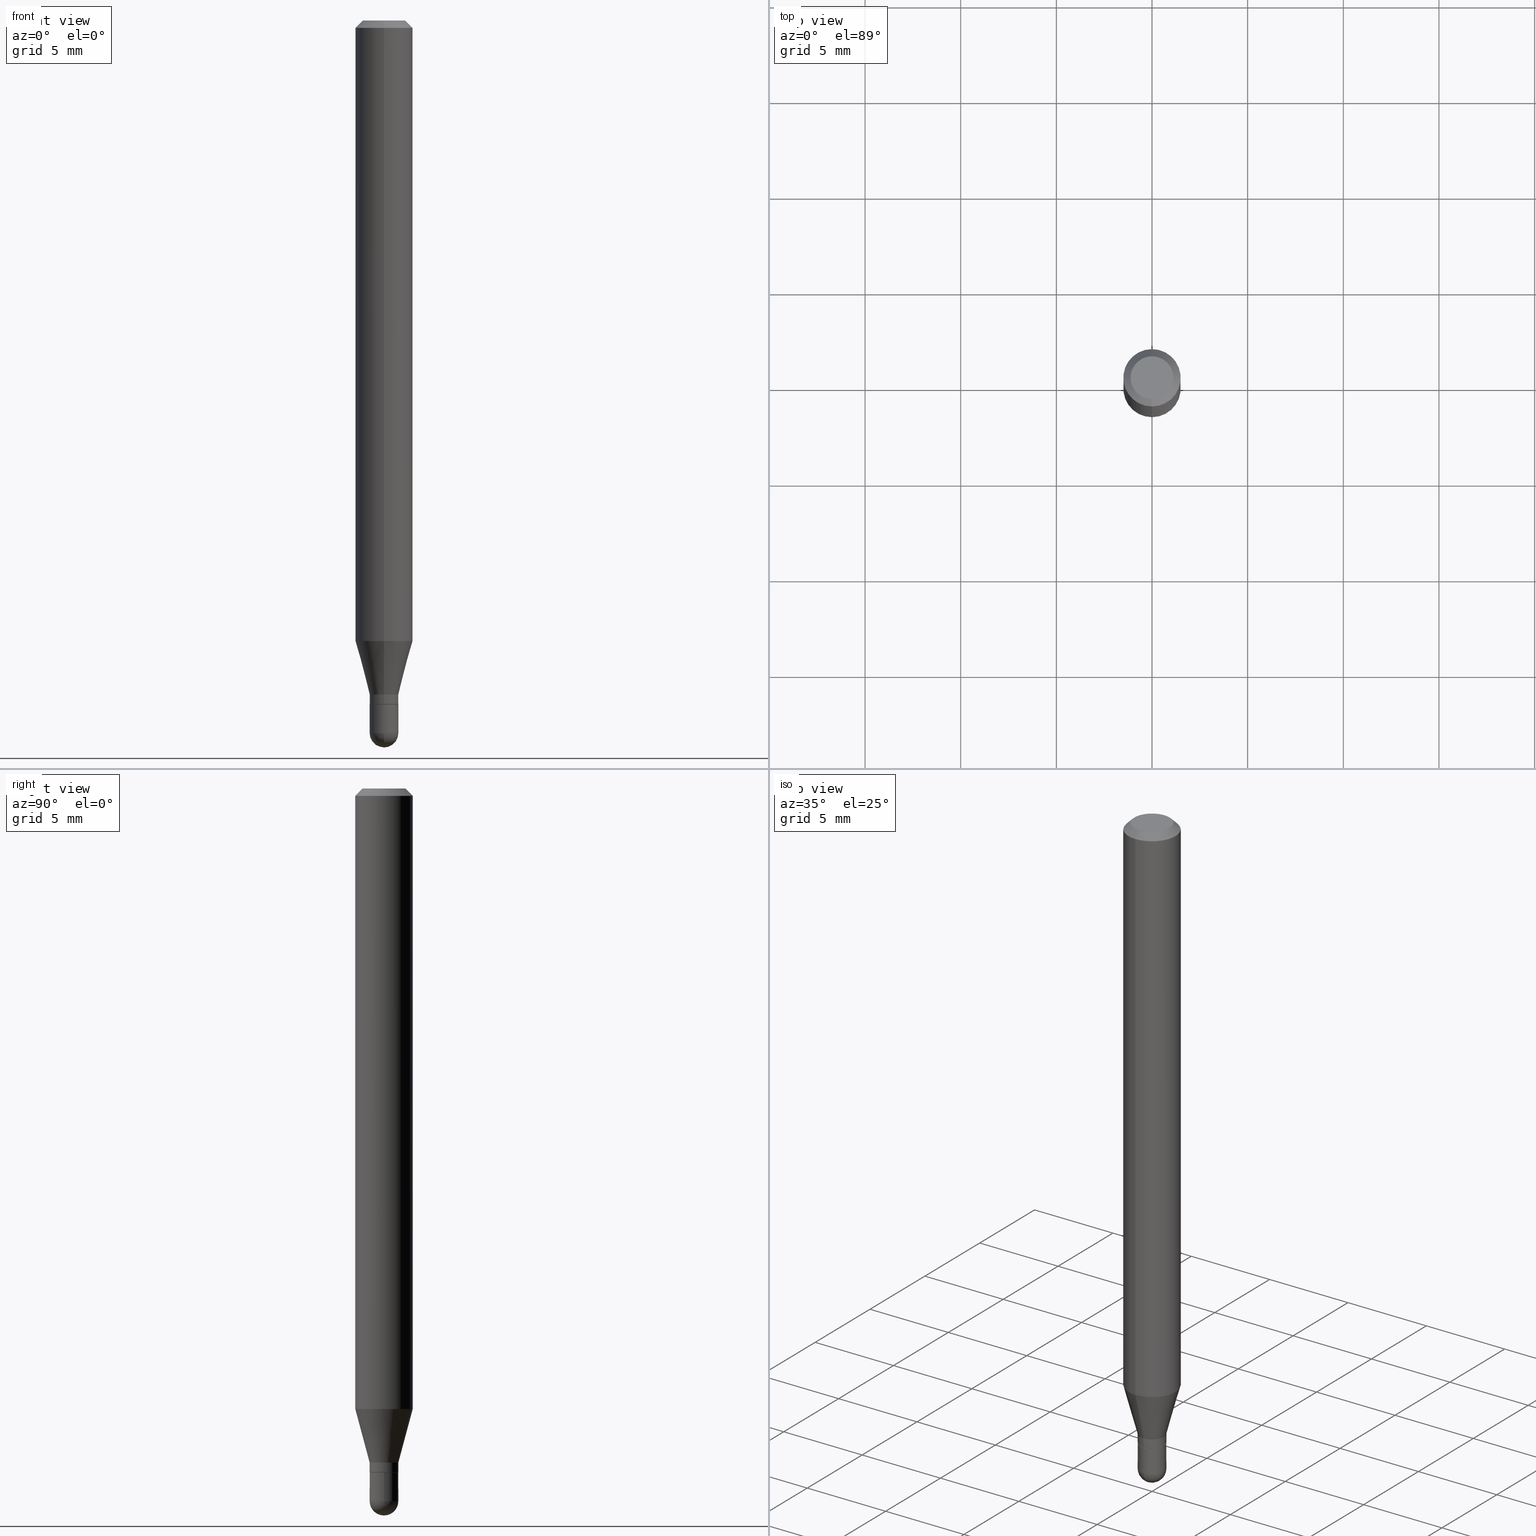
[diagram: canonical four-view strip — front | top / right | iso, engineering-drawing reading convention]
A machine part, canonical four-view strip (front | top / right | iso — engineering-drawing reading convention). The complete STEP part file that produces these views, byte-faithful:
ISO-10303-21;
HEADER;
FILE_DESCRIPTION (( 'STEP AP203' ),
    '1' );
FILE_NAME ('02932.STEP',
    '2024-03-07T21:49:51',
    ( '' ),
    ( '' ),
    'SwSTEP 2.0',
    'SolidWorks 2023',
    '' );
FILE_SCHEMA (( 'CONFIG_CONTROL_DESIGN' ));
ENDSEC;

DATA;
#1 = CARTESIAN_POINT ( 'NONE',  ( 3.586402277710811162E-29, -5.120431957480414460E-15, -1.466549999999999576 ) ) ;
#2 = DIRECTION ( 'NONE',  ( -2.445527102149587346E-29, 3.491397855704051540E-15, 1.000000000000000000 ) ) ;
#3 = ORIENTED_EDGE ( 'NONE', *, *, #85, .T. ) ;
#4 = LOCAL_TIME ( 16, 49, 51.00000000000000000, #219 ) ;
#5 = AXIS2_PLACEMENT_3D ( 'NONE', #164, #23, #247 ) ;
#6 = FACE_OUTER_BOUND ( 'NONE', #335, .T. ) ;
#7 = ADVANCED_FACE ( 'NONE', ( #507 ), #28, .T. ) ;
#8 = CARTESIAN_POINT ( 'NONE',  ( 3.440856632724470127E-29, -4.912396782975600392E-15, -1.407000000000000028 ) ) ;
#9 = DIRECTION ( 'NONE',  ( -6.982962677686265922E-15, -1.000000000000000000, 0.000000000000000000 ) ) ;
#10 = PERSON ( 'UNSPECIFIED', 'UNSPECIFIED', 'UNSPECIFIED', ('UNSPECIFIED'), ('UNSPECIFIED'), ('UNSPECIFIED') ) ;
#11 = DIRECTION ( 'NONE',  ( -4.937700262164674260E-15, -0.7071067811865632269, 0.7071067811865319186 ) ) ;
#12 = APPLICATION_PROTOCOL_DEFINITION ( 'international standard', 'config_control_design', 1994, #178 ) ;
#13 = LINE ( 'NONE', #443, #375 ) ;
#14 = EDGE_LOOP ( 'NONE', ( #249, #3 ) ) ;
#15 = DIRECTION ( 'NONE',  ( 1.000000000000000000, -7.105427357601001070E-15, 4.926315508542082329E-29 ) ) ;
#16 = PERSON_AND_ORGANIZATION ( #10, #149 ) ;
#17 = ORIENTED_EDGE ( 'NONE', *, *, #62, .T. ) ;
#18 = EDGE_CURVE ( 'NONE', #179, #304, #218, .T. ) ;
#19 = FACE_OUTER_BOUND ( 'NONE', #363, .T. ) ;
#20 = APPROVAL_PERSON_ORGANIZATION ( #168, #390, #480 ) ;
#21 = CARTESIAN_POINT ( 'NONE',  ( 3.668290653224403387E-31, -5.237096783556109678E-17, -0.01500000000000009139 ) ) ;
#22 = VERTEX_POINT ( 'NONE', #461 ) ;
#23 = DIRECTION ( 'NONE',  ( -2.445527102149587346E-29, 3.491397855704051540E-15, 1.000000000000000000 ) ) ;
#24 = ORIENTED_EDGE ( 'NONE', *, *, #436, .F. ) ;
#25 = APPLICATION_CONTEXT ( 'configuration controlled 3d designs of mechanical parts and assemblies' ) ;
#26 = ORIENTED_EDGE ( 'NONE', *, *, #85, .F. ) ;
#27 = APPROVAL ( #30, 'UNSPECIFIED' ) ;
#28 = SPHERICAL_SURFACE ( 'NONE', #216, 0.02954999999999998253 ) ;
#29 = AXIS2_PLACEMENT_3D ( 'NONE', #404, #15, #180 ) ;
#30 = APPROVAL_STATUS ( 'not_yet_approved' ) ;
#31 = EDGE_LOOP ( 'NONE', ( #157, #188, #455, #152 ) ) ;
#32 = CARTESIAN_POINT ( 'NONE',  ( 0.02954999999999999988, -5.120606531547356216E-15, -1.407499999999999973 ) ) ;
#33 = FACE_OUTER_BOUND ( 'NONE', #367, .T. ) ;
#34 = CLOSED_SHELL ( 'NONE', ( #109, #7, #416, #215, #303 ) ) ;
#35 = AXIS2_PLACEMENT_3D ( 'NONE', #8, #226, #271 ) ;
#36 = CARTESIAN_POINT ( 'NONE',  ( 2.064126647383434894E-16, 0.02904999999999508670, -1.407499999999999973 ) ) ;
#37 = CC_DESIGN_PERSON_AND_ORGANIZATION_ASSIGNMENT ( #16, #285, ( #72 ) ) ;
#38 = CARTESIAN_POINT ( 'NONE',  ( 3.392190643391691746E-29, -4.842917965647089767E-15, -1.387099999999999778 ) ) ;
#39 = ORIENTED_EDGE ( 'NONE', *, *, #427, .T. ) ;
#40 = APPROVAL_PERSON_ORGANIZATION ( #113, #27, #108 ) ;
#41 = CIRCLE ( 'NONE', #329, 0.02954999999999999988 ) ;
#42 = ORIENTED_EDGE ( 'NONE', *, *, #384, .F. ) ;
#43 = CC_DESIGN_PERSON_AND_ORGANIZATION_ASSIGNMENT ( #460, #297, ( #283 ) ) ;
#44 = CARTESIAN_POINT ( 'NONE',  ( -0.02954999999999999988, -4.807380592533961176E-15, -1.466549999999999576 ) ) ;
#45 = CARTESIAN_POINT ( 'NONE',  ( -2.063465471255947033E-16, -0.02955000000000476690, -1.387099999999999778 ) ) ;
#46 = CONICAL_SURFACE ( 'NONE', #66, 0.02954999999999992355, 0.2617993877991506291 ) ;
#47 = ORIENTED_EDGE ( 'NONE', *, *, #184, .T. ) ;
#48 = CARTESIAN_POINT ( 'NONE',  ( -4.123439461173736383E-16, -0.05905000000000005383, -0.01499999999999988495 ) ) ;
#49 = ORIENTED_EDGE ( 'NONE', *, *, #228, .F. ) ;
#50 = EDGE_CURVE ( 'NONE', #138, #142, #262, .T. ) ;
#51 = DIRECTION ( 'NONE',  ( -2.445527102149587346E-29, 3.491397855704051540E-15, 1.000000000000000000 ) ) ;
#52 = DIRECTION ( 'NONE',  ( 1.000000000000000000, 0.000000000000000000, 0.000000000000000000 ) ) ;
#53 = APPROVAL ( #185, 'UNSPECIFIED' ) ;
#54 = ORIENTED_EDGE ( 'NONE', *, *, #18, .T. ) ;
#55 = DIRECTION ( 'NONE',  ( 2.445527102149587346E-29, -3.491397855704051540E-15, -1.000000000000000000 ) ) ;
#56 = CARTESIAN_POINT ( 'NONE',  ( -3.536586717851222218E-16, -0.04404999999999999888, 6.212758519530678863E-17 ) ) ;
#57 = EDGE_LOOP ( 'NONE', ( #435, #54, #415, #495 ) ) ;
#58 = AXIS2_PLACEMENT_3D ( 'NONE', #38, #431, #9 ) ;
#59 = CARTESIAN_POINT ( 'NONE',  ( -2.028550657867515976E-16, -0.02905000000000491217, -1.407499999999999973 ) ) ;
#60 = DATE_AND_TIME ( #259, #381 ) ;
#61 = ORIENTED_EDGE ( 'NONE', *, *, #78, .F. ) ;
#62 = EDGE_CURVE ( 'NONE', #263, #107, #508, .T. ) ;
#63 = PERSON_AND_ORGANIZATION ( #10, #149 ) ;
#64 = FACE_OUTER_BOUND ( 'NONE', #31, .T. ) ;
#65 = ORIENTED_EDGE ( 'NONE', *, *, #116, .T. ) ;
#66 = AXIS2_PLACEMENT_3D ( 'NONE', #172, #203, #330 ) ;
#67 = CC_DESIGN_APPROVAL ( #27, ( #88 ) ) ;
#68 = MANIFOLD_SOLID_BREP ( 'Body-Move/Copy2[1]', #34 ) ;
#69 = PERSON_AND_ORGANIZATION_ROLE ( 'creator' ) ;
#70 = DIRECTION ( 'NONE',  ( -2.445468806185136877E-29, 3.491481338843145188E-15, 1.000000000000000000 ) ) ;
#71 = ADVANCED_FACE ( 'NONE', ( #458 ), #119, .T. ) ;
#72 = PRODUCT ( '02932', '02932', '', ( #198 ) ) ;
#73 = CYLINDRICAL_SURFACE ( 'NONE', #111, 0.02954999999999999988 ) ;
#74 = EDGE_LOOP ( 'NONE', ( #379, #251, #270, #286 ) ) ;
#75 = CIRCLE ( 'NONE', #364, 0.05904999999999999832 ) ;
#76 = DIRECTION ( 'NONE',  ( -2.445468806185136597E-29, 3.491481338843145583E-15, 1.000000000000000000 ) ) ;
#77 = ORIENTED_EDGE ( 'NONE', *, *, #184, .F. ) ;
#78 = EDGE_CURVE ( 'NONE', #176, #87, #105, .T. ) ;
#79 = DIRECTION ( 'NONE',  ( 1.839019923739602682E-15, 0.2588190451025252914, 0.9659258262890670910 ) ) ;
#80 = CARTESIAN_POINT ( 'NONE',  ( 4.195754854663705544E-16, 0.05904999999999994975, -0.01500000000000029955 ) ) ;
#81 = VECTOR ( 'NONE', #210, 39.37007874015748854 ) ;
#82 = AXIS2_PLACEMENT_3D ( 'NONE', #284, #361, #452 ) ;
#83 = CARTESIAN_POINT ( 'NONE',  ( 0.000000000000000000, 0.000000000000000000, 0.000000000000000000 ) ) ;
#84 = DIRECTION ( 'NONE',  ( -2.445527102149587346E-29, 3.491397855704051145E-15, 1.000000000000000000 ) ) ;
#85 = EDGE_CURVE ( 'NONE', #374, #87, #470, .T. ) ;
#86 = FACE_OUTER_BOUND ( 'NONE', #484, .T. ) ;
#87 = VERTEX_POINT ( 'NONE', #32 ) ;
#88 = SECURITY_CLASSIFICATION ( '', '', #506 ) ;
#89 = ADVANCED_FACE ( 'NONE', ( #64 ), #258, .T. ) ;
#90 = AXIS2_PLACEMENT_3D ( 'NONE', #376, #250, #162 ) ;
#91 = CARTESIAN_POINT ( 'NONE',  ( 3.599717260347271507E-16, 0.04404999999999999888, -2.454645658922200893E-16 ) ) ;
#92 = LINE ( 'NONE', #408, #311 ) ;
#93 = ORIENTED_EDGE ( 'NONE', *, *, #213, .T. ) ;
#94 = EDGE_CURVE ( 'NONE', #476, #326, #490, .T. ) ;
#95 = DATE_AND_TIME ( #489, #232 ) ;
#96 = ORIENTED_EDGE ( 'NONE', *, *, #386, .T. ) ;
#97 = FACE_OUTER_BOUND ( 'NONE', #497, .T. ) ;
#98 = FACE_OUTER_BOUND ( 'NONE', #102, .T. ) ;
#99 = ORIENTED_EDGE ( 'NONE', *, *, #177, .F. ) ;
#100 = DIRECTION ( 'NONE',  ( 1.000000000000000000, -6.982962677686261977E-15, 0.000000000000000000 ) ) ;
#101 = CALENDAR_DATE ( 2024, 7, 3 ) ;
#102 = EDGE_LOOP ( 'NONE', ( #419, #207, #486, #316 ) ) ;
#103 = VECTOR ( 'NONE', #79, 39.37007874015748143 ) ;
#104 = SHAPE_DEFINITION_REPRESENTATION ( #288, #197 ) ;
#105 = LINE ( 'NONE', #302, #421 ) ;
#106 = PERSON_AND_ORGANIZATION_ROLE ( 'classification_officer' ) ;
#107 = VERTEX_POINT ( 'NONE', #466 ) ;
#108 = APPROVAL_ROLE ( '' ) ;
#109 = ADVANCED_FACE ( 'NONE', ( #340 ), #73, .T. ) ;
#110 = ORIENTED_EDGE ( 'NONE', *, *, #153, .T. ) ;
#111 = AXIS2_PLACEMENT_3D ( 'NONE', #181, #502, #222 ) ;
#112 = CC_DESIGN_PERSON_AND_ORGANIZATION_ASSIGNMENT ( #498, #69, ( #283 ) ) ;
#113 = PERSON_AND_ORGANIZATION ( #10, #149 ) ;
#114 = DIRECTION ( 'NONE',  ( 1.000000000000000000, -6.982962677686261977E-15, 0.000000000000000000 ) ) ;
#115 = DIRECTION ( 'NONE',  ( 5.024295867788190974E-15, 0.7071067811865681119, 0.7071067811865270336 ) ) ;
#116 = EDGE_CURVE ( 'NONE', #268, #142, #182, .T. ) ;
#117 = CARTESIAN_POINT ( 'NONE',  ( 0.02954999999999999988, -5.223692518076699355E-15, -1.466549999999999576 ) ) ;
#118 = LINE ( 'NONE', #314, #196 ) ;
#119 = CONICAL_SURFACE ( 'NONE', #401, 0.02904999999999999943, 0.7853981633974739252 ) ;
#120 = CIRCLE ( 'NONE', #472, 0.04404999999999999888 ) ;
#121 = CARTESIAN_POINT ( 'NONE',  ( 2.063465471256636054E-16, 0.02954999999999508714, -1.407499999999999973 ) ) ;
#122 = ORIENTED_EDGE ( 'NONE', *, *, #483, .F. ) ;
#123 = EDGE_CURVE ( 'NONE', #304, #22, #413, .T. ) ;
#124 = CIRCLE ( 'NONE', #151, 0.05904999999999999832 ) ;
#125 = FACE_OUTER_BOUND ( 'NONE', #74, .T. ) ;
#126 = APPROVAL_DATE_TIME ( #95, #390 ) ;
#127 = DIRECTION ( 'NONE',  ( -6.982962677686265922E-15, -1.000000000000000000, 3.491397855704051540E-15 ) ) ;
#128 = DIRECTION ( 'NONE',  ( 0.000000000000000000, 0.000000000000000000, 1.000000000000000000 ) ) ;
#129 = ADVANCED_FACE ( 'NONE', ( #33 ), #154, .F. ) ;
#130 = CARTESIAN_POINT ( 'NONE',  ( 3.583875261326286346E-29, -5.124050788771894996E-15, -1.466550000000000020 ) ) ;
#131 = CARTESIAN_POINT ( 'NONE',  ( 0.000000000000000000, 0.000000000000000000, 0.000000000000000000 ) ) ;
#132 = ORIENTED_EDGE ( 'NONE', *, *, #358, .F. ) ;
#133 = EDGE_CURVE ( 'NONE', #142, #268, #75, .T. ) ;
#134 = CC_DESIGN_APPROVAL ( #390, ( #370 ) ) ;
#135 = AXIS2_PLACEMENT_3D ( 'NONE', #433, #353, #312 ) ;
#136 = DIRECTION ( 'NONE',  ( 6.982962677686265922E-15, 1.000000000000000000, -3.505890868245046092E-15 ) ) ;
#137 = LINE ( 'NONE', #45, #81 ) ;
#138 = VERTEX_POINT ( 'NONE', #356 ) ;
#139 = CYLINDRICAL_SURFACE ( 'NONE', #242, 0.02954999999999999988 ) ;
#140 = ORIENTED_EDGE ( 'NONE', *, *, #190, .T. ) ;
#141 = CARTESIAN_POINT ( 'NONE',  ( 3.441997344705579782E-29, -4.914259984421726606E-15, -1.407499999999999973 ) ) ;
#142 = VERTEX_POINT ( 'NONE', #80 ) ;
#143 = CC_DESIGN_PERSON_AND_ORGANIZATION_ASSIGNMENT ( #274, #163, ( #370 ) ) ;
#144 = DIRECTION ( 'NONE',  ( -6.982962677686265922E-15, -1.000000000000000000, 0.000000000000000000 ) ) ;
#145 = AXIS2_PLACEMENT_3D ( 'NONE', #244, #252, #407 ) ;
#146 = CALENDAR_DATE ( 2024, 7, 3 ) ;
#147 = CARTESIAN_POINT ( 'NONE',  ( 3.668290653224403387E-31, -5.237096783556109678E-17, -0.01500000000000009139 ) ) ;
#148 = DIRECTION ( 'NONE',  ( -2.445527102149587346E-29, 3.491397855704051540E-15, 1.000000000000000000 ) ) ;
#149 = ORGANIZATION ( 'UNSPECIFIED', 'UNSPECIFIED', '' ) ;
#150 = DIRECTION ( 'NONE',  ( -6.982962677686266711E-15, -1.000000000000000000, 0.000000000000000000 ) ) ;
#151 = AXIS2_PLACEMENT_3D ( 'NONE', #349, #2, #235 ) ;
#152 = ORIENTED_EDGE ( 'NONE', *, *, #474, .F. ) ;
#153 = EDGE_CURVE ( 'NONE', #179, #409, #217, .T. ) ;
#154 = PLANE ( 'NONE',  #135 ) ;
#155 = DIRECTION ( 'NONE',  ( -2.445468806185136597E-29, 3.491481338843145583E-15, 1.000000000000000000 ) ) ;
#156 = AXIS2_PLACEMENT_3D ( 'NONE', #21, #201, #442 ) ;
#157 = ORIENTED_EDGE ( 'NONE', *, *, #418, .T. ) ;
#158 = CONICAL_SURFACE ( 'NONE', #272, 0.05904999999999999832, 0.7853981633974483900 ) ;
#159 = DIRECTION ( 'NONE',  ( -1.000000000000000000, 6.982962677686265922E-15, -4.876176775795935793E-29 ) ) ;
#160 = EDGE_LOOP ( 'NONE', ( #132, #17, #204, #412, #26 ) ) ;
#161 = AXIS2_PLACEMENT_3D ( 'NONE', #1, #313, #430 ) ;
#162 = DIRECTION ( 'NONE',  ( -6.982962677686265922E-15, -1.000000000000000000, 3.491397855704051540E-15 ) ) ;
#163 = PERSON_AND_ORGANIZATION_ROLE ( 'creator' ) ;
#164 = CARTESIAN_POINT ( 'NONE',  ( 3.392190643391691746E-29, -4.842917965647089767E-15, -1.387099999999999778 ) ) ;
#165 = CC_DESIGN_PERSON_AND_ORGANIZATION_ASSIGNMENT ( #175, #106, ( #88 ) ) ;
#166 = ORIENTED_EDGE ( 'NONE', *, *, #334, .F. ) ;
#167 = DIRECTION ( 'NONE',  ( -1.000000000000000000, 6.982962677686265922E-15, -4.883557194083112340E-29 ) ) ;
#168 = PERSON_AND_ORGANIZATION ( #10, #149 ) ;
#169 = EDGE_LOOP ( 'NONE', ( #194, #47, #195, #223 ) ) ;
#170 = AXIS2_PLACEMENT_3D ( 'NONE', #321, #447, #276 ) ;
#171 = CIRCLE ( 'NONE', #35, 0.02954999999999992355 ) ;
#172 = CARTESIAN_POINT ( 'NONE',  ( 3.392190643391691746E-29, -4.842917965647089767E-15, -1.387099999999999778 ) ) ;
#173 = ORIENTED_EDGE ( 'NONE', *, *, #474, .T. ) ;
#174 = CARTESIAN_POINT ( 'NONE',  ( 2.099653784171453740E-16, 0.02954999999999486857, -1.466549999999999576 ) ) ;
#175 = PERSON_AND_ORGANIZATION ( #10, #149 ) ;
#176 = VERTEX_POINT ( 'NONE', #117 ) ;
#177 = EDGE_CURVE ( 'NONE', #107, #176, #260, .T. ) ;
#178 = APPLICATION_CONTEXT ( 'configuration controlled 3d designs of mechanical parts and assemblies' ) ;
#179 = VERTEX_POINT ( 'NONE', #225 ) ;
#180 = DIRECTION ( 'NONE',  ( 7.105427357601001070E-15, 1.000000000000000000, 0.000000000000000000 ) ) ;
#181 = CARTESIAN_POINT ( 'NONE',  ( 0.000000000000000000, 0.000000000000000000, 0.000000000000000000 ) ) ;
#182 = CIRCLE ( 'NONE', #294, 0.05904999999999999832 ) ;
#183 = ADVANCED_FACE ( 'NONE', ( #125 ), #441, .T. ) ;
#184 = EDGE_CURVE ( 'NONE', #138, #202, #266, .T. ) ;
#185 = APPROVAL_STATUS ( 'not_yet_approved' ) ;
#186 = DIRECTION ( 'NONE',  ( -2.445468806185136597E-29, 3.491481338843145583E-15, 1.000000000000000000 ) ) ;
#187 = CARTESIAN_POINT ( 'NONE',  ( 3.392190643391691746E-29, -4.842917965647089767E-15, -1.387099999999999778 ) ) ;
#188 = ORIENTED_EDGE ( 'NONE', *, *, #436, .T. ) ;
#189 = AXIS2_PLACEMENT_3D ( 'NONE', #141, #454, #100 ) ;
#190 = EDGE_CURVE ( 'NONE', #326, #476, #120, .T. ) ;
#191 = DIRECTION ( 'NONE',  ( -2.445527102149587346E-29, 3.491397855704051145E-15, 1.000000000000000000 ) ) ;
#192 = DIRECTION ( 'NONE',  ( -2.445527102149587346E-29, 3.491397855704051145E-15, 1.000000000000000000 ) ) ;
#193 = DIRECTION ( 'NONE',  ( -6.982962677686266711E-15, -1.000000000000000000, 0.000000000000000000 ) ) ;
#194 = ORIENTED_EDGE ( 'NONE', *, *, #50, .F. ) ;
#195 = ORIENTED_EDGE ( 'NONE', *, *, #310, .T. ) ;
#196 = VECTOR ( 'NONE', #192, 39.37007874015748143 ) ;
#197 = ADVANCED_BREP_SHAPE_REPRESENTATION ( '02932', ( #68, #234, #243 ), #488 ) ;
#198 = MECHANICAL_CONTEXT ( 'NONE', #25, 'mechanical' ) ;
#199 = CIRCLE ( 'NONE', #189, 0.02954999999999999988 ) ;
#200 = CARTESIAN_POINT ( 'NONE',  ( 3.668290653224403387E-31, -5.237096783556109678E-17, -0.01500000000000009139 ) ) ;
#201 = DIRECTION ( 'NONE',  ( 2.445527102149587346E-29, -3.491397855704051540E-15, -1.000000000000000000 ) ) ;
#202 = VERTEX_POINT ( 'NONE', #291 ) ;
#203 = DIRECTION ( 'NONE',  ( -2.445527102149587346E-29, 3.491397855704051540E-15, 1.000000000000000000 ) ) ;
#204 = ORIENTED_EDGE ( 'NONE', *, *, #177, .T. ) ;
#205 = DIRECTION ( 'NONE',  ( -6.982962677686265133E-15, -1.000000000000000000, 3.491397855704051540E-15 ) ) ;
#206 = DIRECTION ( 'NONE',  ( -6.982962677686265922E-15, -1.000000000000000000, 3.491397855704051540E-15 ) ) ;
#207 = ORIENTED_EDGE ( 'NONE', *, *, #190, .F. ) ;
#208 = APPROVAL_PERSON_ORGANIZATION ( #63, #53, #425 ) ;
#209 = CYLINDRICAL_SURFACE ( 'NONE', #429, 0.05904999999999999832 ) ;
#210 = DIRECTION ( 'NONE',  ( -1.807323732225332900E-15, -0.2588190451025185190, 0.9659258262890689783 ) ) ;
#211 = ORIENTED_EDGE ( 'NONE', *, *, #123, .T. ) ;
#212 = ORIENTED_EDGE ( 'NONE', *, *, #62, .F. ) ;
#213 = EDGE_CURVE ( 'NONE', #409, #22, #493, .T. ) ;
#214 = DIRECTION ( 'NONE',  ( -2.445527102149587346E-29, 3.491397855704051540E-15, 1.000000000000000000 ) ) ;
#215 = ADVANCED_FACE ( 'NONE', ( #487 ), #289, .T. ) ;
#216 = AXIS2_PLACEMENT_3D ( 'NONE', #424, #389, #144 ) ;
#217 = CIRCLE ( 'NONE', #282, 0.02904999999999999943 ) ;
#218 = LINE ( 'NONE', #36, #439 ) ;
#219 = COORDINATED_UNIVERSAL_TIME_OFFSET ( 5, 0, .BEHIND. ) ;
#220 = CARTESIAN_POINT ( 'NONE',  ( 3.442079396275544048E-29, -4.914142481903452893E-15, -1.407499999999999973 ) ) ;
#221 = COORDINATED_UNIVERSAL_TIME_OFFSET ( 5, 0, .BEHIND. ) ;
#222 = DIRECTION ( 'NONE',  ( 1.000000000000000000, -6.982962677686266711E-15, 4.876176775795935793E-29 ) ) ;
#223 = ORIENTED_EDGE ( 'NONE', *, *, #133, .F. ) ;
#224 = ADVANCED_FACE ( 'NONE', ( #97 ), #372, .T. ) ;
#225 = CARTESIAN_POINT ( 'NONE',  ( 2.081890215777434702E-16, 0.02904999999999508670, -1.407499999999999973 ) ) ;
#226 = DIRECTION ( 'NONE',  ( -2.445527102149587346E-29, 3.491397855704051540E-15, 1.000000000000000000 ) ) ;
#227 = DIMENSIONAL_EXPONENTS ( 1.000000000000000000, 0.000000000000000000, 0.000000000000000000, 0.000000000000000000, 0.000000000000000000, 0.000000000000000000, 0.000000000000000000 ) ;
#228 = EDGE_CURVE ( 'NONE', #326, #142, #324, .T. ) ;
#229 = ORIENTED_EDGE ( 'NONE', *, *, #483, .T. ) ;
#230 = CARTESIAN_POINT ( 'NONE',  ( 3.442079396275544048E-29, -4.914142481903452893E-15, -1.407499999999999973 ) ) ;
#231 = LINE ( 'NONE', #393, #422 ) ;
#232 = LOCAL_TIME ( 16, 49, 51.00000000000000000, #450 ) ;
#233 = CIRCLE ( 'NONE', #346, 0.02954999999999999988 ) ;
#234 = MANIFOLD_SOLID_BREP ( 'Body-Move/Copy2[2]', #388 ) ;
#235 = DIRECTION ( 'NONE',  ( -6.982962677686265922E-15, -1.000000000000000000, 4.626330217890369336E-15 ) ) ;
#236 = PLANE ( 'NONE',  #352 ) ;
#237 = ORIENTED_EDGE ( 'NONE', *, *, #427, .F. ) ;
#238 = CARTESIAN_POINT ( 'NONE',  ( -2.063465471255947033E-16, -0.02955000000000476690, -1.387099999999999778 ) ) ;
#239 =( NAMED_UNIT ( * ) SI_UNIT ( $, .STERADIAN. ) SOLID_ANGLE_UNIT ( ) );
#240 = ORIENTED_EDGE ( 'NONE', *, *, #153, .F. ) ;
#241 = AXIS2_PLACEMENT_3D ( 'NONE', #255, #186, #417 ) ;
#242 = AXIS2_PLACEMENT_3D ( 'NONE', #333, #275, #485 ) ;
#243 = AXIS2_PLACEMENT_3D ( 'NONE', #318, #128, #52 ) ;
#244 = CARTESIAN_POINT ( 'NONE',  ( 3.122949117194679067E-29, -4.458530777132816558E-15, -1.277004501176718154 ) ) ;
#245 = DIRECTION ( 'NONE',  ( -6.982962677686265922E-15, -1.000000000000000000, 3.491397855704051145E-15 ) ) ;
#246 = EDGE_LOOP ( 'NONE', ( #166, #240 ) ) ;
#247 = DIRECTION ( 'NONE',  ( -6.982962677686265922E-15, -1.000000000000000000, 0.000000000000000000 ) ) ;
#248 = DIRECTION ( 'NONE',  ( -2.445527102149587346E-29, 3.491397855704051540E-15, 1.000000000000000000 ) ) ;
#249 = ORIENTED_EDGE ( 'NONE', *, *, #306, .T. ) ;
#250 = DIRECTION ( 'NONE',  ( -2.445527102149587346E-29, 3.491397855704051540E-15, 1.000000000000000000 ) ) ;
#251 = ORIENTED_EDGE ( 'NONE', *, *, #50, .T. ) ;
#252 = DIRECTION ( 'NONE',  ( -2.445527102149587346E-29, 3.491397855704051540E-15, 1.000000000000000000 ) ) ;
#253 = ORIENTED_EDGE ( 'NONE', *, *, #123, .F. ) ;
#254 = CALENDAR_DATE ( 2024, 7, 3 ) ;
#255 = CARTESIAN_POINT ( 'NONE',  ( 3.441997344705579782E-29, -4.914259984421726606E-15, -1.407499999999999973 ) ) ;
#256 = APPROVAL_DATE_TIME ( #457, #27 ) ;
#257 = CC_DESIGN_APPROVAL ( #53, ( #283 ) ) ;
#258 = CONICAL_SURFACE ( 'NONE', #481, 0.02954999999999992355, 0.2617993877991506291 ) ;
#259 = CALENDAR_DATE ( 2024, 7, 3 ) ;
#260 = CIRCLE ( 'NONE', #161, 0.02954999999999999988 ) ;
#261 = EDGE_LOOP ( 'NONE', ( #277, #347, #212, #237 ) ) ;
#262 = LINE ( 'NONE', #426, #328 ) ;
#263 = VERTEX_POINT ( 'NONE', #44 ) ;
#264 = ADVANCED_FACE ( 'NONE', ( #19 ), #158, .T. ) ;
#265 = DIRECTION ( 'NONE',  ( 2.438088387897960049E-29, -3.491481338843145188E-15, -1.000000000000000000 ) ) ;
#266 = CIRCLE ( 'NONE', #145, 0.05904999999999999832 ) ;
#267 = LINE ( 'NONE', #434, #103 ) ;
#268 = VERTEX_POINT ( 'NONE', #48 ) ;
#269 = EDGE_CURVE ( 'NONE', #337, #319, #456, .T. ) ;
#270 = ORIENTED_EDGE ( 'NONE', *, *, #116, .F. ) ;
#271 = DIRECTION ( 'NONE',  ( -6.982962677686265922E-15, -1.000000000000000000, 0.000000000000000000 ) ) ;
#272 = AXIS2_PLACEMENT_3D ( 'NONE', #200, #55, #136 ) ;
#273 = CARTESIAN_POINT ( 'NONE',  ( 3.147704319417567192E-16, 0.02954999999999508020, -1.387099999999999778 ) ) ;
#274 = PERSON_AND_ORGANIZATION ( #10, #149 ) ;
#275 = DIRECTION ( 'NONE',  ( -2.445468806185136597E-29, 3.491481338843145583E-15, 1.000000000000000000 ) ) ;
#276 = DIRECTION ( 'NONE',  ( -6.982962677686266711E-15, -1.000000000000000000, 0.000000000000000000 ) ) ;
#277 = ORIENTED_EDGE ( 'NONE', *, *, #327, .F. ) ;
#278 = CARTESIAN_POINT ( 'NONE',  ( 2.099653784171427362E-16, 0.02954999999999491367, -1.407000000000000028 ) ) ;
#279 = FACE_OUTER_BOUND ( 'NONE', #432, .T. ) ;
#280 = ORIENTED_EDGE ( 'NONE', *, *, #327, .T. ) ;
#281 = CC_DESIGN_SECURITY_CLASSIFICATION ( #88, ( #283 ) ) ;
#282 = AXIS2_PLACEMENT_3D ( 'NONE', #230, #479, #193 ) ;
#283 = PRODUCT_DEFINITION_FORMATION_WITH_SPECIFIED_SOURCE ( 'ANY', '', #72, .NOT_KNOWN. ) ;
#284 = CARTESIAN_POINT ( 'NONE',  ( 3.583875261326286346E-29, -5.124050788771894996E-15, -1.466550000000000020 ) ) ;
#285 = PERSON_AND_ORGANIZATION_ROLE ( 'design_owner' ) ;
#286 = ORIENTED_EDGE ( 'NONE', *, *, #310, .F. ) ;
#287 = ADVANCED_FACE ( 'NONE', ( #320 ), #209, .T. ) ;
#288 = PRODUCT_DEFINITION_SHAPE ( 'NONE', 'NONE',  #370 ) ;
#289 = SPHERICAL_SURFACE ( 'NONE', #82, 0.02954999999999998253 ) ;
#290 = ORIENTED_EDGE ( 'NONE', *, *, #94, .F. ) ;
#291 = CARTESIAN_POINT ( 'NONE',  ( -4.123439461173429220E-16, -0.05905000000000448085, -1.277004501176717932 ) ) ;
#292 = DATE_TIME_ROLE ( 'classification_date' ) ;
#293 = VERTEX_POINT ( 'NONE', #174 ) ;
#294 = AXIS2_PLACEMENT_3D ( 'NONE', #147, #298, #383 ) ;
#295 = DIRECTION ( 'NONE',  ( -2.445468806185136597E-29, 3.491481338843145583E-15, 1.000000000000000000 ) ) ;
#296 = CC_DESIGN_DATE_AND_TIME_ASSIGNMENT ( #343, #292, ( #88 ) ) ;
#297 = PERSON_AND_ORGANIZATION_ROLE ( 'design_supplier' ) ;
#298 = DIRECTION ( 'NONE',  ( -2.445527102149587346E-29, 3.491397855704051540E-15, 1.000000000000000000 ) ) ;
#299 = DIRECTION ( 'NONE',  ( -6.982962677686265922E-15, -1.000000000000000000, 0.000000000000000000 ) ) ;
#300 = ADVANCED_FACE ( 'NONE', ( #86 ), #46, .T. ) ;
#301 = VECTOR ( 'NONE', #11, 39.37007874015748143 ) ;
#302 = CARTESIAN_POINT ( 'NONE',  ( 0.02954999999999999988, -2.063465471256291914E-16, 1.440910237247699070E-30 ) ) ;
#303 = ADVANCED_FACE ( 'NONE', ( #369 ), #139, .T. ) ;
#304 = VERTEX_POINT ( 'NONE', #278 ) ;
#305 = CARTESIAN_POINT ( 'NONE',  ( -0.02954999999999999988, -4.807380592533961176E-15, -1.407499999999999973 ) ) ;
#306 = EDGE_CURVE ( 'NONE', #87, #374, #199, .T. ) ;
#307 = DIRECTION ( 'NONE',  ( -2.445527102149587346E-29, 3.491397855704051540E-15, 1.000000000000000000 ) ) ;
#308 = DIRECTION ( 'NONE',  ( 1.000000000000000000, -6.982962677686261977E-15, 0.000000000000000000 ) ) ;
#309 = AXIS2_PLACEMENT_3D ( 'NONE', #501, #348, #505 ) ;
#310 = EDGE_CURVE ( 'NONE', #202, #268, #13, .T. ) ;
#311 = VECTOR ( 'NONE', #84, 39.37007874015748143 ) ;
#312 = DIRECTION ( 'NONE',  ( 6.982962677686265922E-15, 1.000000000000000000, -3.491397855704051145E-15 ) ) ;
#313 = DIRECTION ( 'NONE',  ( -2.445468806185136597E-29, 3.491481338843145583E-15, 1.000000000000000000 ) ) ;
#314 = CARTESIAN_POINT ( 'NONE',  ( -2.063465471256286244E-16, -0.02954999999999992355, 1.031708066360544615E-16 ) ) ;
#315 = DIRECTION ( 'NONE',  ( -2.445527102149587346E-29, 3.491397855704051540E-15, 1.000000000000000000 ) ) ;
#316 = ORIENTED_EDGE ( 'NONE', *, *, #133, .T. ) ;
#317 = AXIS2_PLACEMENT_3D ( 'NONE', #121, #265, #159 ) ;
#318 = CARTESIAN_POINT ( 'NONE',  ( 0.000000000000000000, 0.000000000000000000, 0.000000000000000000 ) ) ;
#319 = VERTEX_POINT ( 'NONE', #238 ) ;
#320 = FACE_OUTER_BOUND ( 'NONE', #169, .T. ) ;
#321 = CARTESIAN_POINT ( 'NONE',  ( 3.442079396275544048E-29, -4.914142481903452893E-15, -1.407499999999999973 ) ) ;
#322 = ORIENTED_EDGE ( 'NONE', *, *, #423, .T. ) ;
#323 = EDGE_CURVE ( 'NONE', #511, #107, #509, .T. ) ;
#324 = LINE ( 'NONE', #398, #464 ) ;
#325 = APPROVAL_STATUS ( 'not_yet_approved' ) ;
#326 = VERTEX_POINT ( 'NONE', #91 ) ;
#327 = EDGE_CURVE ( 'NONE', #511, #293, #403, .T. ) ;
#328 = VECTOR ( 'NONE', #191, 39.37007874015748143 ) ;
#329 = AXIS2_PLACEMENT_3D ( 'NONE', #467, #76, #391 ) ;
#330 = DIRECTION ( 'NONE',  ( -6.982962677686265922E-15, -1.000000000000000000, 0.000000000000000000 ) ) ;
#331 =( LENGTH_UNIT ( ) NAMED_UNIT ( * ) SI_UNIT ( $, .METRE. ) );
#332 = ORIENTED_EDGE ( 'NONE', *, *, #368, .T. ) ;
#333 = CARTESIAN_POINT ( 'NONE',  ( 0.000000000000000000, 0.000000000000000000, 0.000000000000000000 ) ) ;
#334 = EDGE_CURVE ( 'NONE', #409, #179, #355, .T. ) ;
#335 = EDGE_LOOP ( 'NONE', ( #96, #229, #385, #42 ) ) ;
#336 = APPROVAL_DATE_TIME ( #60, #53 ) ;
#337 = VERTEX_POINT ( 'NONE', #273 ) ;
#338 = AXIS2_PLACEMENT_3D ( 'NONE', #504, #148, #387 ) ;
#339 = COORDINATED_UNIVERSAL_TIME_OFFSET ( 5, 0, .BEHIND. ) ;
#340 = FACE_OUTER_BOUND ( 'NONE', #499, .T. ) ;
#341 = DATE_TIME_ROLE ( 'creation_date' ) ;
#342 = DIRECTION ( 'NONE',  ( -2.445527102149587346E-29, 3.491397855704051540E-15, 1.000000000000000000 ) ) ;
#343 = DATE_AND_TIME ( #254, #4 ) ;
#344 = DIRECTION ( 'NONE',  ( -2.445527102149587346E-29, 3.491397855704051540E-15, 1.000000000000000000 ) ) ;
#345 = AXIS2_PLACEMENT_3D ( 'NONE', #428, #295, #114 ) ;
#346 = AXIS2_PLACEMENT_3D ( 'NONE', #350, #155, #308 ) ;
#347 = ORIENTED_EDGE ( 'NONE', *, *, #323, .T. ) ;
#348 = DIRECTION ( 'NONE',  ( -2.445527102149587346E-29, 3.491397855704051540E-15, 1.000000000000000000 ) ) ;
#349 = CARTESIAN_POINT ( 'NONE',  ( 3.122949117194679067E-29, -4.458530777132816558E-15, -1.277004501176718154 ) ) ;
#350 = CARTESIAN_POINT ( 'NONE',  ( 3.586402277710811162E-29, -5.120431957480414460E-15, -1.466549999999999576 ) ) ;
#351 = ORIENTED_EDGE ( 'NONE', *, *, #323, .F. ) ;
#352 = AXIS2_PLACEMENT_3D ( 'NONE', #362, #373, #245 ) ;
#353 = DIRECTION ( 'NONE',  ( 2.445527102149587626E-29, -3.491397855704051145E-15, -1.000000000000000000 ) ) ;
#354 = DIRECTION ( 'NONE',  ( -2.445468806185136877E-29, 3.491481338843145188E-15, 1.000000000000000000 ) ) ;
#355 = CIRCLE ( 'NONE', #309, 0.02904999999999999943 ) ;
#356 = CARTESIAN_POINT ( 'NONE',  ( 4.195754854663701106E-16, 0.05904999999999551580, -1.277004501176718376 ) ) ;
#357 = DIRECTION ( 'NONE',  ( -4.851104656540964275E-15, -0.7071067811865500152, -0.7071067811865450192 ) ) ;
#358 = EDGE_CURVE ( 'NONE', #263, #374, #360, .T. ) ;
#359 = PLANE ( 'NONE',  #317 ) ;
#360 = LINE ( 'NONE', #420, #382 ) ;
#361 = DIRECTION ( 'NONE',  ( 1.000000000000000000, -6.982962677686265922E-15, 4.883557194083112901E-29 ) ) ;
#362 = CARTESIAN_POINT ( 'NONE',  ( 3.442079396275544048E-29, -4.914142481903452893E-15, -1.407499999999999973 ) ) ;
#363 = EDGE_LOOP ( 'NONE', ( #290, #332, #65, #49 ) ) ;
#364 = AXIS2_PLACEMENT_3D ( 'NONE', #469, #315, #395 ) ;
#365 = DIRECTION ( 'NONE',  ( -2.445527102149587346E-29, 3.491397855704051145E-15, 1.000000000000000000 ) ) ;
#366 = CARTESIAN_POINT ( 'NONE',  ( 3.654875356356795165E-29, -5.229033477980449675E-15, -1.496099999999999985 ) ) ;
#367 = EDGE_LOOP ( 'NONE', ( #140, #371 ) ) ;
#368 = EDGE_CURVE ( 'NONE', #476, #268, #231, .T. ) ;
#369 = FACE_OUTER_BOUND ( 'NONE', #160, .T. ) ;
#370 = PRODUCT_DEFINITION ( 'UNKNOWN', '', #283, #468 ) ;
#371 = ORIENTED_EDGE ( 'NONE', *, *, #94, .T. ) ;
#372 = CYLINDRICAL_SURFACE ( 'NONE', #90, 0.02954999999999992355 ) ;
#373 = DIRECTION ( 'NONE',  ( -2.445527102149587626E-29, 3.491397855704051145E-15, 1.000000000000000000 ) ) ;
#374 = VERTEX_POINT ( 'NONE', #305 ) ;
#375 = VECTOR ( 'NONE', #365, 39.37007874015748143 ) ;
#376 = CARTESIAN_POINT ( 'NONE',  ( 0.000000000000000000, 0.000000000000000000, 0.000000000000000000 ) ) ;
#377 = LENGTH_MEASURE_WITH_UNIT ( LENGTH_MEASURE( 0.02539999999999999897 ), #331 );
#378 = ORIENTED_EDGE ( 'NONE', *, *, #423, .F. ) ;
#379 = ORIENTED_EDGE ( 'NONE', *, *, #397, .T. ) ;
#380 = DIRECTION ( 'NONE',  ( -6.982962677686265133E-15, -1.000000000000000000, 3.491397855704051540E-15 ) ) ;
#381 = LOCAL_TIME ( 16, 49, 51.00000000000000000, #503 ) ;
#382 = VECTOR ( 'NONE', #354, 39.37007874015748143 ) ;
#383 = DIRECTION ( 'NONE',  ( -6.982962677686265922E-15, -1.000000000000000000, 3.505890868245046092E-15 ) ) ;
#384 = EDGE_CURVE ( 'NONE', #22, #319, #118, .T. ) ;
#385 = ORIENTED_EDGE ( 'NONE', *, *, #418, .F. ) ;
#386 = EDGE_CURVE ( 'NONE', #22, #304, #171, .T. ) ;
#387 = DIRECTION ( 'NONE',  ( -6.982962677686265922E-15, -1.000000000000000000, 0.000000000000000000 ) ) ;
#388 = CLOSED_SHELL ( 'NONE', ( #459, #71, #264, #183, #89, #300, #287, #512, #129, #510, #462, #224 ) ) ;
#389 = DIRECTION ( 'NONE',  ( 1.000000000000000000, -6.982962677686265922E-15, 4.883557194083112901E-29 ) ) ;
#390 = APPROVAL ( #325, 'UNSPECIFIED' ) ;
#391 = DIRECTION ( 'NONE',  ( 1.000000000000000000, -6.982962677686261977E-15, 0.000000000000000000 ) ) ;
#392 = CONICAL_SURFACE ( 'NONE', #170, 0.02904999999999999943, 0.7853981633974739252 ) ;
#393 = CARTESIAN_POINT ( 'NONE',  ( -4.051124067684085231E-16, -0.05905000000000005383, -0.01499999999999988495 ) ) ;
#394 = CARTESIAN_POINT ( 'NONE',  ( -2.028550657867515976E-16, -0.02905000000000491217, -1.407499999999999973 ) ) ;
#395 = DIRECTION ( 'NONE',  ( -6.982962677686265922E-15, -1.000000000000000000, 3.505890868245046092E-15 ) ) ;
#396 = ORIENTED_EDGE ( 'NONE', *, *, #269, .T. ) ;
#397 = EDGE_CURVE ( 'NONE', #202, #138, #124, .T. ) ;
#398 = CARTESIAN_POINT ( 'NONE',  ( 4.123439461173743285E-16, 0.05904999999999994975, -0.01500000000000029955 ) ) ;
#399 = CONICAL_SURFACE ( 'NONE', #156, 0.05904999999999999832, 0.7853981633974483900 ) ;
#400 = CYLINDRICAL_SURFACE ( 'NONE', #446, 0.02954999999999992355 ) ;
#401 = AXIS2_PLACEMENT_3D ( 'NONE', #220, #344, #150 ) ;
#402 = ORIENTED_EDGE ( 'NONE', *, *, #384, .T. ) ;
#403 = CIRCLE ( 'NONE', #29, 0.02954999999999998253 ) ;
#404 = CARTESIAN_POINT ( 'NONE',  ( 3.583875261326286346E-29, -5.124050788771894996E-15, -1.466550000000000020 ) ) ;
#405 =( CONVERSION_BASED_UNIT ( 'INCH', #377 ) LENGTH_UNIT ( ) NAMED_UNIT ( #227 ) );
#406 = ORIENTED_EDGE ( 'NONE', *, *, #18, .F. ) ;
#407 = DIRECTION ( 'NONE',  ( -6.982962677686265922E-15, -1.000000000000000000, 4.626330217890369336E-15 ) ) ;
#408 = CARTESIAN_POINT ( 'NONE',  ( 2.099653784171090371E-16, 0.02954999999999992355, -1.031708066360544615E-16 ) ) ;
#409 = VERTEX_POINT ( 'NONE', #394 ) ;
#410 = DIRECTION ( 'NONE',  ( -2.445527102149587346E-29, 3.491397855704051540E-15, 1.000000000000000000 ) ) ;
#411 = APPLICATION_PROTOCOL_DEFINITION ( 'international standard', 'config_control_design', 1994, #25 ) ;
#412 = ORIENTED_EDGE ( 'NONE', *, *, #78, .T. ) ;
#413 = CIRCLE ( 'NONE', #338, 0.02954999999999992355 ) ;
#414 = DIRECTION ( 'NONE',  ( -6.982962677686265922E-15, -1.000000000000000000, 3.491397855704051540E-15 ) ) ;
#415 = ORIENTED_EDGE ( 'NONE', *, *, #386, .F. ) ;
#416 = ADVANCED_FACE ( 'NONE', ( #473 ), #359, .F. ) ;
#417 = DIRECTION ( 'NONE',  ( 1.000000000000000000, -6.982962677686261977E-15, 0.000000000000000000 ) ) ;
#418 = EDGE_CURVE ( 'NONE', #319, #337, #440, .T. ) ;
#419 = ORIENTED_EDGE ( 'NONE', *, *, #368, .F. ) ;
#420 = CARTESIAN_POINT ( 'NONE',  ( -0.02954999999999999988, 2.099653784171096041E-16, -1.453545319170324550E-30 ) ) ;
#421 = VECTOR ( 'NONE', #70, 39.37007874015748143 ) ;
#422 = VECTOR ( 'NONE', #357, 39.37007874015748143 ) ;
#423 = EDGE_CURVE ( 'NONE', #176, #293, #41, .T. ) ;
#424 = CARTESIAN_POINT ( 'NONE',  ( 3.583875261326286346E-29, -5.124050788771894996E-15, -1.466550000000000020 ) ) ;
#425 = APPROVAL_ROLE ( '' ) ;
#426 = CARTESIAN_POINT ( 'NONE',  ( 4.195754854663390985E-16, 0.05904999999999999832, -2.061670433793242399E-16 ) ) ;
#427 = EDGE_CURVE ( 'NONE', #293, #263, #233, .T. ) ;
#428 = CARTESIAN_POINT ( 'NONE',  ( 3.586402277710811162E-29, -5.120431957480414460E-15, -1.466549999999999576 ) ) ;
#429 = AXIS2_PLACEMENT_3D ( 'NONE', #482, #410, #414 ) ;
#430 = DIRECTION ( 'NONE',  ( 1.000000000000000000, -6.982962677686261977E-15, 0.000000000000000000 ) ) ;
#431 = DIRECTION ( 'NONE',  ( -2.445527102149587346E-29, 3.491397855704051540E-15, 1.000000000000000000 ) ) ;
#432 = EDGE_LOOP ( 'NONE', ( #406, #110, #93, #253 ) ) ;
#433 = CARTESIAN_POINT ( 'NONE',  ( 3.075995059520799729E-16, 0.04404999999999999888, -1.996303207179918042E-16 ) ) ;
#434 = CARTESIAN_POINT ( 'NONE',  ( 2.099653784171429334E-16, 0.02954999999999508020, -1.387099999999999778 ) ) ;
#435 = ORIENTED_EDGE ( 'NONE', *, *, #334, .T. ) ;
#436 = EDGE_CURVE ( 'NONE', #337, #138, #267, .T. ) ;
#437 = LOCAL_TIME ( 16, 49, 51.00000000000000000, #339 ) ;
#438 = PRODUCT_RELATED_PRODUCT_CATEGORY ( 'detail', '', ( #72 ) ) ;
#439 = VECTOR ( 'NONE', #115, 39.37007874015748143 ) ;
#440 = CIRCLE ( 'NONE', #58, 0.02954999999999992355 ) ;
#441 = CYLINDRICAL_SURFACE ( 'NONE', #500, 0.05904999999999999832 ) ;
#442 = DIRECTION ( 'NONE',  ( 6.982962677686265922E-15, 1.000000000000000000, -3.505890868245046092E-15 ) ) ;
#443 = CARTESIAN_POINT ( 'NONE',  ( -4.123439461173739834E-16, -0.05904999999999999832, 2.061670433793242399E-16 ) ) ;
#444 = FACE_OUTER_BOUND ( 'NONE', #246, .T. ) ;
#445 = DIRECTION ( 'NONE',  ( -6.982962677686265922E-15, -1.000000000000000000, 0.000000000000000000 ) ) ;
#446 = AXIS2_PLACEMENT_3D ( 'NONE', #131, #248, #206 ) ;
#447 = DIRECTION ( 'NONE',  ( -2.445527102149587346E-29, 3.491397855704051540E-15, 1.000000000000000000 ) ) ;
#448 = EDGE_LOOP ( 'NONE', ( #351, #280, #378, #99 ) ) ;
#449 = CARTESIAN_POINT ( 'NONE',  ( 2.241777775602886502E-45, -3.200511706382291446E-31, -9.166849034845666883E-17 ) ) ;
#450 = COORDINATED_UNIVERSAL_TIME_OFFSET ( 5, 0, .BEHIND. ) ;
#451 = ORIENTED_EDGE ( 'NONE', *, *, #269, .F. ) ;
#452 = DIRECTION ( 'NONE',  ( -6.982962677686265922E-15, -1.000000000000000000, 0.000000000000000000 ) ) ;
#453 = ORIENTED_EDGE ( 'NONE', *, *, #358, .T. ) ;
#454 = DIRECTION ( 'NONE',  ( -2.445468806185136597E-29, 3.491481338843145583E-15, 1.000000000000000000 ) ) ;
#455 = ORIENTED_EDGE ( 'NONE', *, *, #397, .F. ) ;
#456 = CIRCLE ( 'NONE', #5, 0.02954999999999992355 ) ;
#457 = DATE_AND_TIME ( #146, #478 ) ;
#458 = FACE_OUTER_BOUND ( 'NONE', #57, .T. ) ;
#459 = ADVANCED_FACE ( 'NONE', ( #6 ), #400, .T. ) ;
#460 = PERSON_AND_ORGANIZATION ( #10, #149 ) ;
#461 = CARTESIAN_POINT ( 'NONE',  ( -2.063465471255949252E-16, -0.02955000000000493343, -1.407000000000000028 ) ) ;
#462 = ADVANCED_FACE ( 'NONE', ( #279 ), #392, .T. ) ;
#463 = CARTESIAN_POINT ( 'NONE',  ( 2.241777775602886502E-45, -3.200511706382291446E-31, -9.166849034845666883E-17 ) ) ;
#464 = VECTOR ( 'NONE', #496, 39.37007874015748143 ) ;
#465 = DATE_AND_TIME ( #101, #437 ) ;
#466 = CARTESIAN_POINT ( 'NONE',  ( -2.063465471255932489E-16, -0.02955000000000511384, -1.466549999999999576 ) ) ;
#467 = CARTESIAN_POINT ( 'NONE',  ( 3.586402277710811162E-29, -5.120431957480414460E-15, -1.466549999999999576 ) ) ;
#468 = DESIGN_CONTEXT ( 'detailed design', #178, 'design' ) ;
#469 = CARTESIAN_POINT ( 'NONE',  ( 3.668290653224403387E-31, -5.237096783556109678E-17, -0.01500000000000009139 ) ) ;
#470 = CIRCLE ( 'NONE', #241, 0.02954999999999999988 ) ;
#471 = AXIS2_PLACEMENT_3D ( 'NONE', #463, #342, #380 ) ;
#472 = AXIS2_PLACEMENT_3D ( 'NONE', #449, #51, #205 ) ;
#473 = FACE_OUTER_BOUND ( 'NONE', #14, .T. ) ;
#474 = EDGE_CURVE ( 'NONE', #319, #202, #137, .T. ) ;
#475 = UNCERTAINTY_MEASURE_WITH_UNIT (LENGTH_MEASURE( 1.000000000000000082E-05 ), #405, 'distance_accuracy_value', 'NONE');
#476 = VERTEX_POINT ( 'NONE', #56 ) ;
#477 = CC_DESIGN_DATE_AND_TIME_ASSIGNMENT ( #465, #341, ( #370 ) ) ;
#478 = LOCAL_TIME ( 16, 49, 51.00000000000000000, #221 ) ;
#479 = DIRECTION ( 'NONE',  ( -2.445527102149587346E-29, 3.491397855704051540E-15, 1.000000000000000000 ) ) ;
#480 = APPROVAL_ROLE ( '' ) ;
#481 = AXIS2_PLACEMENT_3D ( 'NONE', #187, #214, #299 ) ;
#482 = CARTESIAN_POINT ( 'NONE',  ( 0.000000000000000000, 0.000000000000000000, 0.000000000000000000 ) ) ;
#483 = EDGE_CURVE ( 'NONE', #304, #337, #92, .T. ) ;
#484 = EDGE_LOOP ( 'NONE', ( #24, #396, #173, #77 ) ) ;
#485 = DIRECTION ( 'NONE',  ( 1.000000000000000000, -6.982962677686266711E-15, 4.876176775795935793E-29 ) ) ;
#486 = ORIENTED_EDGE ( 'NONE', *, *, #228, .T. ) ;
#487 = FACE_OUTER_BOUND ( 'NONE', #261, .T. ) ;
#488 =( GEOMETRIC_REPRESENTATION_CONTEXT ( 3 ) GLOBAL_UNCERTAINTY_ASSIGNED_CONTEXT ( ( #475 ) ) GLOBAL_UNIT_ASSIGNED_CONTEXT ( ( #405, #494, #239 ) ) REPRESENTATION_CONTEXT ( 'NONE', 'WORKASPACE' ) );
#489 = CALENDAR_DATE ( 2024, 7, 3 ) ;
#490 = CIRCLE ( 'NONE', #471, 0.04404999999999999888 ) ;
#491 = ORIENTED_EDGE ( 'NONE', *, *, #306, .F. ) ;
#492 = AXIS2_PLACEMENT_3D ( 'NONE', #130, #167, #445 ) ;
#493 = LINE ( 'NONE', #59, #301 ) ;
#494 =( NAMED_UNIT ( * ) PLANE_ANGLE_UNIT ( ) SI_UNIT ( $, .RADIAN. ) );
#495 = ORIENTED_EDGE ( 'NONE', *, *, #213, .F. ) ;
#496 = DIRECTION ( 'NONE',  ( 4.937700262164548042E-15, 0.7071067811865451302, -0.7071067811865499042 ) ) ;
#497 = EDGE_LOOP ( 'NONE', ( #122, #211, #402, #451 ) ) ;
#498 = PERSON_AND_ORGANIZATION ( #10, #149 ) ;
#499 = EDGE_LOOP ( 'NONE', ( #39, #453, #491, #61, #322 ) ) ;
#500 = AXIS2_PLACEMENT_3D ( 'NONE', #83, #307, #127 ) ;
#501 = CARTESIAN_POINT ( 'NONE',  ( 3.442079396275544048E-29, -4.914142481903452893E-15, -1.407499999999999973 ) ) ;
#502 = DIRECTION ( 'NONE',  ( -2.445468806185136597E-29, 3.491481338843145583E-15, 1.000000000000000000 ) ) ;
#503 = COORDINATED_UNIVERSAL_TIME_OFFSET ( 5, 0, .BEHIND. ) ;
#504 = CARTESIAN_POINT ( 'NONE',  ( 3.440856632724470127E-29, -4.912396782975600392E-15, -1.407000000000000028 ) ) ;
#505 = DIRECTION ( 'NONE',  ( -6.982962677686266711E-15, -1.000000000000000000, 0.000000000000000000 ) ) ;
#506 = SECURITY_CLASSIFICATION_LEVEL ( 'unclassified' ) ;
#507 = FACE_OUTER_BOUND ( 'NONE', #448, .T. ) ;
#508 = CIRCLE ( 'NONE', #345, 0.02954999999999999988 ) ;
#509 = CIRCLE ( 'NONE', #492, 0.02954999999999998253 ) ;
#510 = ADVANCED_FACE ( 'NONE', ( #444 ), #236, .F. ) ;
#511 = VERTEX_POINT ( 'NONE', #366 ) ;
#512 = ADVANCED_FACE ( 'NONE', ( #98 ), #399, .T. ) ;
ENDSEC;
END-ISO-10303-21;
